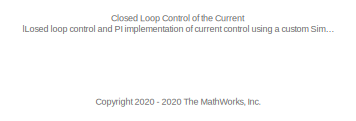
[diagram: root canvas - part 1/6, top left region]
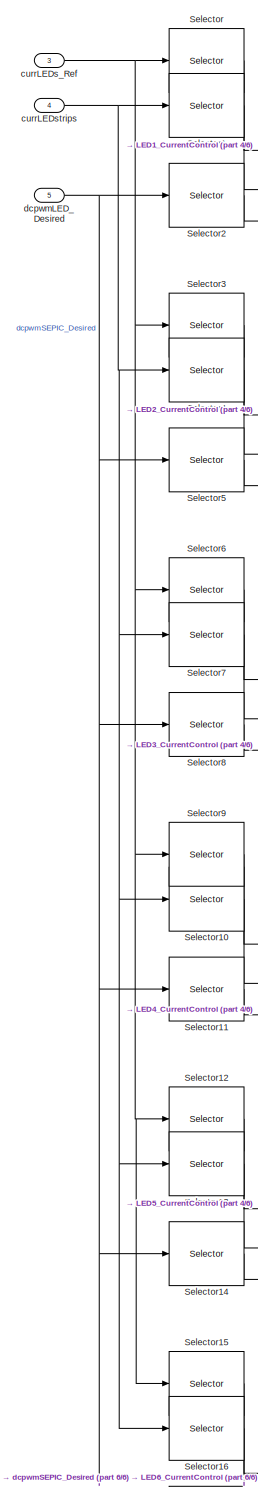
[diagram: root canvas - part 2/6, left side, full height]
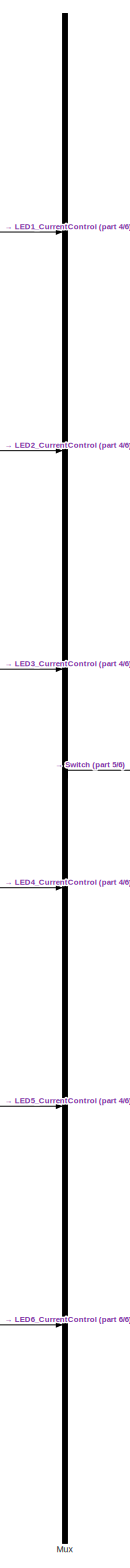
[diagram: root canvas - part 3/6, center side, full height]
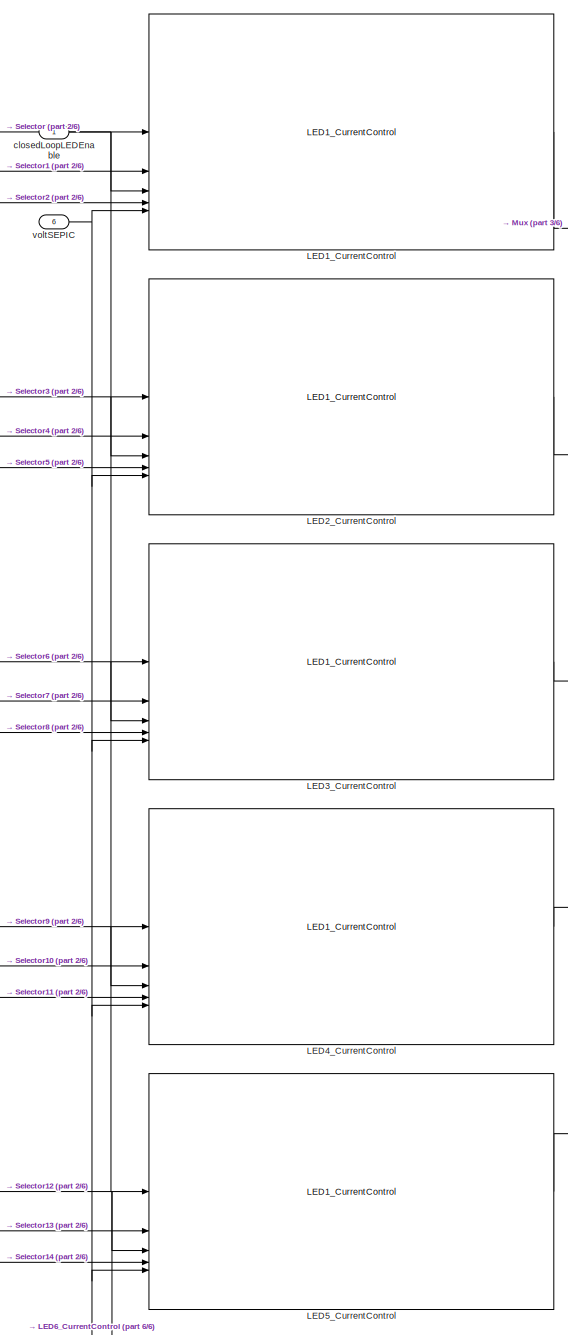
[diagram: root canvas - part 4/6, central region]
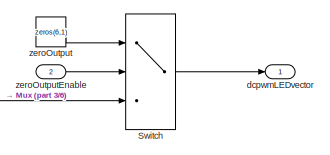
[diagram: root canvas - part 5/6, middle right region]
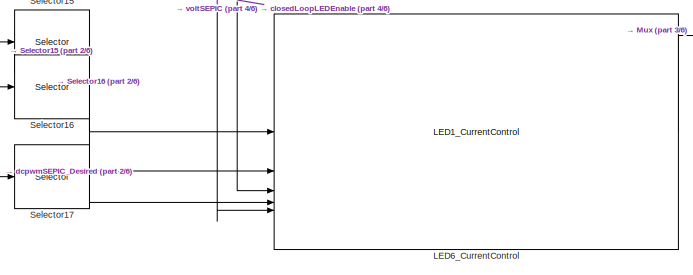
[diagram: root canvas - part 6/6, bottom center region]
MODEL slx_45207d35e35b
KIND model
CONFIG AbsTol = auto
CONFIG EnableMultiTasking = on
CONFIG FixedStep = 0.02
CONFIG MaxStep = auto
CONFIG MinStep = auto
CONFIG RelTol = 1e-3
CONFIG SampleTimeConstraint = Unconstrained
CONFIG SolverName = ode23t
CONFIG StartTime = 0.0
CONFIG StopTime = 1.5
WORKSPACE source: mxarray member
WORKSPACE TsModel = 0.001
BLOCK [Reference] LED1_CurrentControl  REF=SEPIC_utilities/LED1_CurrentControl
  SourceBlock = SEPIC_utilities/LED1_CurrentControl
BLOCK [Reference] LED2_CurrentControl  REF=SEPIC_utilities/LED1_CurrentControl
  SourceBlock = SEPIC_utilities/LED1_CurrentControl
BLOCK [Reference] LED3_CurrentControl  REF=SEPIC_utilities/LED1_CurrentControl
  SourceBlock = SEPIC_utilities/LED1_CurrentControl
BLOCK [Reference] LED4_CurrentControl  REF=SEPIC_utilities/LED1_CurrentControl
  SourceBlock = SEPIC_utilities/LED1_CurrentControl
BLOCK [Reference] LED5_CurrentControl  REF=SEPIC_utilities/LED1_CurrentControl
  SourceBlock = SEPIC_utilities/LED1_CurrentControl
BLOCK [Reference] LED6_CurrentControl  REF=SEPIC_utilities/LED1_CurrentControl
  SourceBlock = SEPIC_utilities/LED1_CurrentControl
BLOCK [Mux] Mux
  DisplayOption = bar
  Inputs = 6
BLOCK [Selector] Selector
  IndexOptions = Index vector (dialog)
  Indices = 1
  InputPortWidth = 6
  OutputSizes = 1
BLOCK [Selector] Selector1
  IndexOptions = Index vector (dialog)
  Indices = 1
  InputPortWidth = 6
  OutputSizes = 1
BLOCK [Selector] Selector10
  IndexOptions = Index vector (dialog)
  Indices = 4
  InputPortWidth = 6
  OutputSizes = 1
BLOCK [Selector] Selector11
  IndexOptions = Index vector (dialog)
  Indices = 4
  InputPortWidth = 6
  OutputSizes = 1
BLOCK [Selector] Selector12
  IndexOptions = Index vector (dialog)
  Indices = 5
  InputPortWidth = 6
  OutputSizes = 1
BLOCK [Selector] Selector13
  IndexOptions = Index vector (dialog)
  Indices = 5
  InputPortWidth = 6
  OutputSizes = 1
BLOCK [Selector] Selector14
  IndexOptions = Index vector (dialog)
  Indices = 5
  InputPortWidth = 6
  OutputSizes = 1
BLOCK [Selector] Selector15
  IndexOptions = Index vector (dialog)
  Indices = 6
  InputPortWidth = 6
  OutputSizes = 1
BLOCK [Selector] Selector16
  IndexOptions = Index vector (dialog)
  Indices = 6
  InputPortWidth = 6
  OutputSizes = 1
BLOCK [Selector] Selector17
  IndexOptions = Index vector (dialog)
  Indices = 6
  InputPortWidth = 6
  OutputSizes = 1
BLOCK [Selector] Selector2
  IndexOptions = Index vector (dialog)
  Indices = 1
  InputPortWidth = 6
  OutputSizes = 1
BLOCK [Selector] Selector3
  IndexOptions = Index vector (dialog)
  Indices = 2
  InputPortWidth = 6
  OutputSizes = 1
BLOCK [Selector] Selector4
  IndexOptions = Index vector (dialog)
  Indices = 2
  InputPortWidth = 6
  OutputSizes = 1
BLOCK [Selector] Selector5
  IndexOptions = Index vector (dialog)
  Indices = 2
  InputPortWidth = 6
  OutputSizes = 1
BLOCK [Selector] Selector6
  IndexOptions = Index vector (dialog)
  Indices = 3
  InputPortWidth = 6
  OutputSizes = 1
BLOCK [Selector] Selector7
  IndexOptions = Index vector (dialog)
  Indices = 3
  InputPortWidth = 6
  OutputSizes = 1
BLOCK [Selector] Selector8
  IndexOptions = Index vector (dialog)
  Indices = 3
  InputPortWidth = 6
  OutputSizes = 1
BLOCK [Selector] Selector9
  IndexOptions = Index vector (dialog)
  Indices = 4
  InputPortWidth = 6
  OutputSizes = 1
BLOCK [Switch] Switch
  Criteria = u2 > Threshold
  InputSameDT = off
  SaturateOnIntegerOverflow = off
BLOCK [Inport] closedLoopLEDEnable
  SampleTime = TsModel
  Unit = 1
BLOCK [Inport] currLEDs_Ref
  OutDataTypeStr = single
  Port = 3
  PortDimensions = [6 1]
  SampleTime = TsModel
  Unit = mA
BLOCK [Inport] currLEDstrips
  OutDataTypeStr = single
  Port = 4
  PortDimensions = [6 1]
  SampleTime = TsModel
  Unit = mA
BLOCK [Inport] dcpwmLED_Desired
  OutDataTypeStr = single
  Port = 5
  PortDimensions = [6 1]
  SampleTime = TsModel
  SamplingMode = Sample based
  SignalType = real
  Unit = 1
BLOCK [Outport] dcpwmLEDvector
  SampleTime = TsModel
  Unit = 1
  VectorParamsAs1DForOutWhenUnconnected = off
BLOCK [Inport] voltSEPIC
  OutDataTypeStr = single
  Port = 6
  PortDimensions = 1
  SampleTime = TsModel
  Unit = V
BLOCK [Constant] zeroOutput
  OutDataTypeStr = single
  Value = zeros(6,1)
BLOCK [Inport] zeroOutputEnable
  OutDataTypeStr = boolean
  Port = 2
  PortDimensions = 1
  SampleTime = TsModel
  SamplingMode = Sample based
  SignalType = real
  Unit = 1
ANNOTATION (root): <copyright redacted>
ANNOTATION (root): Closed Loop Control of the Current lLosed loop control and PI implementation of current control using a custom Simulink Library
LINE LED1_CurrentControl:1 -> Mux:1
LINE LED2_CurrentControl:1 -> Mux:2
LINE LED3_CurrentControl:1 -> Mux:3
LINE LED4_CurrentControl:1 -> Mux:4
LINE LED5_CurrentControl:1 -> Mux:5
LINE LED6_CurrentControl:1 -> Mux:6
LINE Mux:1 -> Switch:3
LINE Selector10:1 -> LED4_CurrentControl:2
LINE Selector11:1 -> LED4_CurrentControl:4
LINE Selector12:1 -> LED5_CurrentControl:1
LINE Selector13:1 -> LED5_CurrentControl:2
LINE Selector14:1 -> LED5_CurrentControl:4
LINE Selector15:1 -> LED6_CurrentControl:1
LINE Selector16:1 -> LED6_CurrentControl:2
LINE Selector17:1 -> LED6_CurrentControl:4
LINE Selector1:1 -> LED1_CurrentControl:2
LINE Selector2:1 -> LED1_CurrentControl:4
LINE Selector3:1 -> LED2_CurrentControl:1
LINE Selector4:1 -> LED2_CurrentControl:2
LINE Selector5:1 -> LED2_CurrentControl:4
LINE Selector6:1 -> LED3_CurrentControl:1
LINE Selector7:1 -> LED3_CurrentControl:2
LINE Selector8:1 -> LED3_CurrentControl:4
LINE Selector9:1 -> LED4_CurrentControl:1
LINE Selector:1 -> LED1_CurrentControl:1
LINE Switch:1 -> dcpwmLEDvector:1
NET closedLoopLEDEnable:1 -> LED1_CurrentControl:3, LED2_CurrentControl:3, LED3_CurrentControl:3, LED4_CurrentControl:3, LED5_CurrentControl:3, LED6_CurrentControl:3
NET currLEDs_Ref:1 -> Selector12:1, Selector15:1, Selector3:1, Selector6:1, Selector9:1, Selector:1
NET currLEDstrips:1 -> Selector10:1, Selector13:1, Selector16:1, Selector1:1, Selector4:1, Selector7:1
NET dcpwmLED_Desired:1 -> Selector11:1, Selector14:1, Selector17:1, Selector2:1, Selector5:1, Selector8:1
NET voltSEPIC:1 -> LED1_CurrentControl:5, LED2_CurrentControl:5, LED3_CurrentControl:5, LED4_CurrentControl:5, LED5_CurrentControl:5, LED6_CurrentControl:5
LINE zeroOutput:1 -> Switch:1
LINE zeroOutputEnable:1 -> Switch:2
note: NET lines group one-source signal fan-out (src -> all destinations, sorted); 1:1 wires keep LINE
